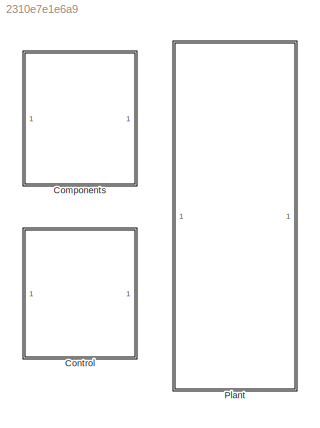
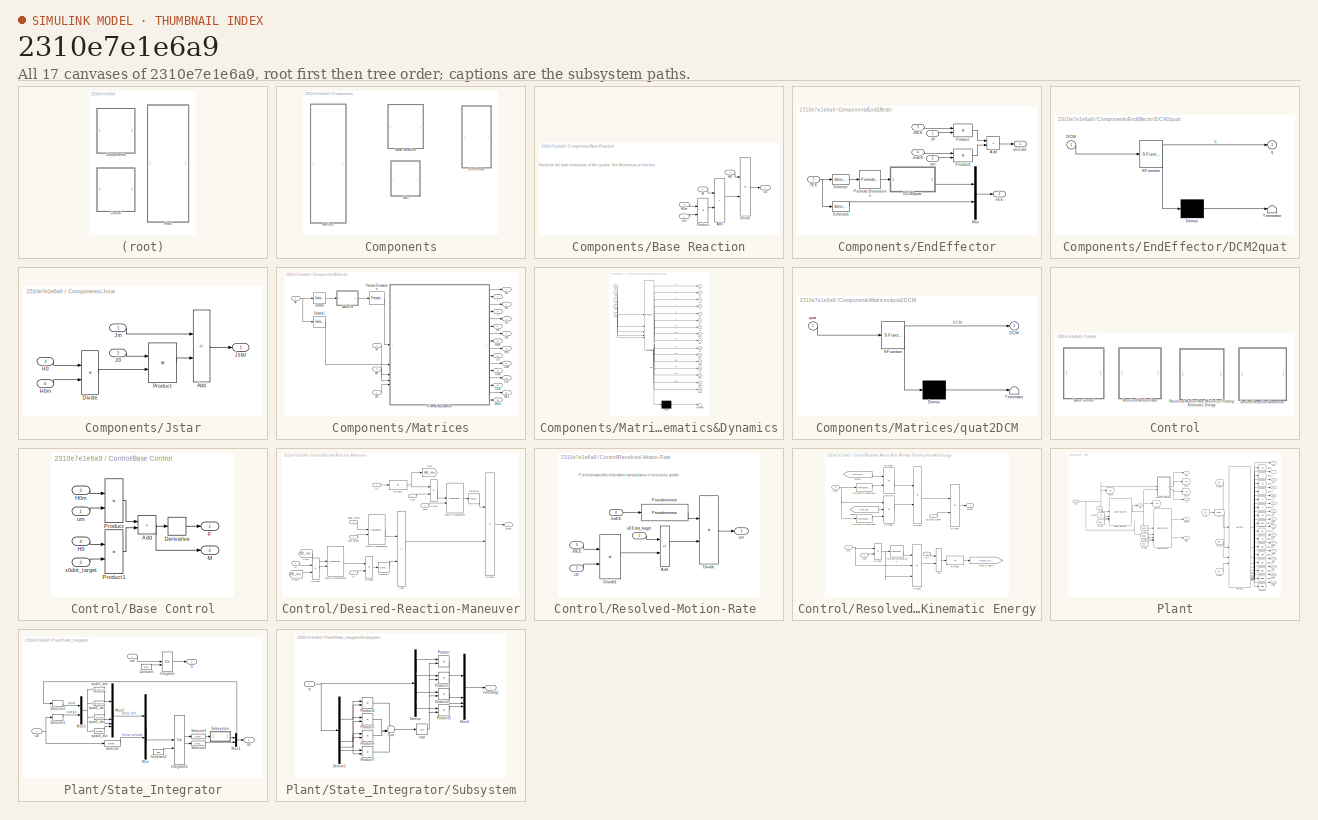
[diagram: thumbnail index - all 17 canvases of the model, root first then tree order]
MODEL slx_2310e7e1e6a9
KIND library
CONFIG AbsTol = auto
CONFIG EnableMultiTasking = on
CONFIG FixedStep = auto
CONFIG MaxStep = auto
CONFIG MinStep = auto
CONFIG RelTol = 1e-3
CONFIG SampleTimeConstraint = Unconstrained
CONFIG SolverName = ode45
CONFIG StartTime = 0.0
CONFIG StopTime = 10.0
BLOCK [SubSystem] Components
BLOCK [SubSystem] Components/Base Reaction
BLOCK [Sum] Components/Base Reaction/Add
  IconShape = rectangular
  Inputs = +-
BLOCK [Product] Components/Base Reaction/Divide
  Inputs = /*
  Multiplication = Matrix(*)
BLOCK [Inport] Components/Base Reaction/H0
  Port = 3
BLOCK [Inport] Components/Base Reaction/H0m
  Port = 4
BLOCK [Inport] Components/Base Reaction/M
  Port = 2
BLOCK [Product] Components/Base Reaction/Product
  Multiplication = Matrix(*)
BLOCK [Outport] Components/Base Reaction/u0
BLOCK [Inport] Components/Base Reaction/um
BLOCK [SubSystem] Components/EndEffector
BLOCK [Sum] Components/EndEffector/Add
  IconShape = rectangular
BLOCK [SubSystem] Components/EndEffector/DCM2quat
  ErrorFcn = Stateflow.Translate.translate
  PermitHierarchicalResolution = ExplicitOnly
  SFBlockType = MATLAB Function
  TreatAsAtomicUnit = on
BLOCK [Demux] Components/EndEffector/DCM2quat/ Demux 
  Outputs = 1
BLOCK [S-Function] Components/EndEffector/DCM2quat/ SFunction 
  EnableBusSupport = off
  FunctionName = sf_sfun
  PortCounts = [1 2]
  SFcnIsStateOwnerBlock = off
  SFunctionDeploymentMode = off
  Tag = Stateflow S-Function 7
BLOCK [Terminator] Components/EndEffector/DCM2quat/ Terminator 
BLOCK [Inport] Components/EndEffector/DCM2quat/DCM
BLOCK [Outport] Components/EndEffector/DCM2quat/q
BLOCK [Inport] Components/EndEffector/J0EE
  Port = 3
BLOCK [Inport] Components/EndEffector/JmEE
  Port = 4
BLOCK [Mux] Components/EndEffector/Mux
  DisplayOption = bar
  Inputs = 2
BLOCK [PermuteDimensions] Components/EndEffector/Permute Dimensions
BLOCK [Product] Components/EndEffector/Product
  Multiplication = Matrix(*)
BLOCK [Product] Components/EndEffector/Product1
  Multiplication = Matrix(*)
BLOCK [Selector] Components/EndEffector/Selector
  IndexOptions = Index vector (dialog),Index vector (dialog)
  Indices = [1:3],[1:3]
  InputPortWidth = 6
  NumberOfDimensions = 2
  OutputSizes = 1,1
BLOCK [Selector] Components/EndEffector/Selector1
  IndexOptions = Index vector (dialog),Index vector (dialog)
  Indices = [1:3],[4]
  InputPortWidth = 6
  NumberOfDimensions = 2
  OutputSizes = 1,1
BLOCK [Inport] Components/EndEffector/TEE
  Port = 5
BLOCK [Inport] Components/EndEffector/u0
BLOCK [Inport] Components/EndEffector/um
  Port = 2
BLOCK [Outport] Components/EndEffector/xEE
  Port = 2
BLOCK [Outport] Components/EndEffector/xEEdot
BLOCK [SubSystem] Components/Jstar
BLOCK [Sum] Components/Jstar/Add
  IconShape = rectangular
  Inputs = +-
BLOCK [Product] Components/Jstar/Divide
  Inputs = /*
  Multiplication = Matrix(*)
BLOCK [Inport] Components/Jstar/H0
  Port = 3
BLOCK [Inport] Components/Jstar/H0m
  Port = 4
BLOCK [Inport] Components/Jstar/J0
  Port = 2
BLOCK [Inport] Components/Jstar/Jm 
BLOCK [Outport] Components/Jstar/Jstar
BLOCK [Product] Components/Jstar/Product
  Multiplication = Matrix(*)
BLOCK [SubSystem] Components/Matrices
BLOCK [Outport] Components/Matrices/C0
  Port = 10
BLOCK [Outport] Components/Matrices/C0m
  Port = 11
BLOCK [Outport] Components/Matrices/Cm
  Port = 13
BLOCK [Outport] Components/Matrices/Cm0
  Port = 12
BLOCK [Outport] Components/Matrices/H0
  Port = 7
BLOCK [Outport] Components/Matrices/H0m
  Port = 8
BLOCK [Outport] Components/Matrices/Hm
  Port = 9
BLOCK [Outport] Components/Matrices/I
  Port = 2
BLOCK [Outport] Components/Matrices/J0EE
  Port = 15
BLOCK [Outport] Components/Matrices/JmEE
  Port = 16
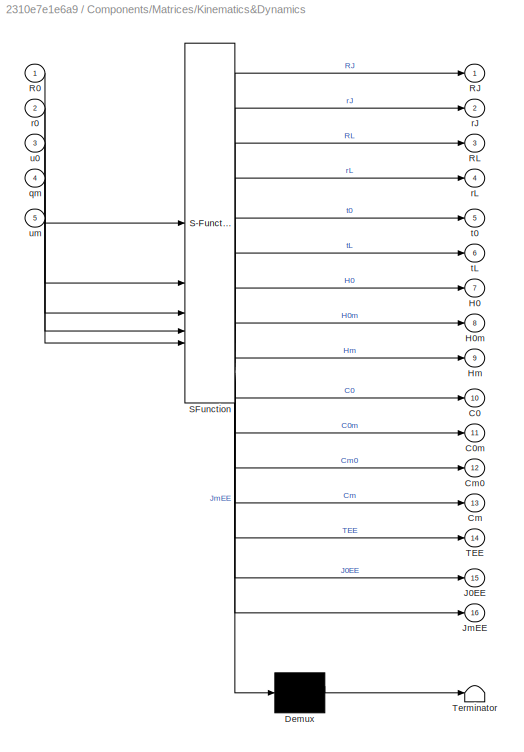
BLOCK [SubSystem] Components/Matrices/Kinematics&Dynamics
  ErrorFcn = Stateflow.Translate.translate
  PermitHierarchicalResolution = ExplicitOnly
  SFBlockType = MATLAB Function
  TreatAsAtomicUnit = on
BLOCK [Demux] Components/Matrices/Kinematics&Dynamics/ Demux 
  Outputs = 1
BLOCK [S-Function] Components/Matrices/Kinematics&Dynamics/ SFunction 
  EnableBusSupport = off
  FunctionName = sf_sfun
  Parameters = T_Ln_EE,robot
  PortCounts = [5 17]
  SFcnIsStateOwnerBlock = off
  SFunctionDeploymentMode = off
  Tag = Stateflow S-Function 3
BLOCK [Terminator] Components/Matrices/Kinematics&Dynamics/ Terminator 
BLOCK [Outport] Components/Matrices/Kinematics&Dynamics/C0
  Port = 10
BLOCK [Outport] Components/Matrices/Kinematics&Dynamics/C0m
  Port = 11
BLOCK [Outport] Components/Matrices/Kinematics&Dynamics/Cm
  Port = 13
BLOCK [Outport] Components/Matrices/Kinematics&Dynamics/Cm0
  Port = 12
BLOCK [Outport] Components/Matrices/Kinematics&Dynamics/H0
  Port = 7
BLOCK [Outport] Components/Matrices/Kinematics&Dynamics/H0m
  Port = 8
BLOCK [Outport] Components/Matrices/Kinematics&Dynamics/Hm
  Port = 9
BLOCK [Outport] Components/Matrices/Kinematics&Dynamics/J0EE
  Port = 15
BLOCK [Outport] Components/Matrices/Kinematics&Dynamics/JmEE
  Port = 16
BLOCK [Inport] Components/Matrices/Kinematics&Dynamics/R0
BLOCK [Outport] Components/Matrices/Kinematics&Dynamics/RJ
BLOCK [Outport] Components/Matrices/Kinematics&Dynamics/RL
  Port = 3
BLOCK [Outport] Components/Matrices/Kinematics&Dynamics/TEE
  Port = 14
BLOCK [Inport] Components/Matrices/Kinematics&Dynamics/qm
  Port = 4
BLOCK [Inport] Components/Matrices/Kinematics&Dynamics/r0
  Port = 2
BLOCK [Outport] Components/Matrices/Kinematics&Dynamics/rJ
  Port = 2
BLOCK [Outport] Components/Matrices/Kinematics&Dynamics/rL
  Port = 4
BLOCK [Outport] Components/Matrices/Kinematics&Dynamics/t0
  Port = 5
BLOCK [Outport] Components/Matrices/Kinematics&Dynamics/tL
  Port = 6
BLOCK [Inport] Components/Matrices/Kinematics&Dynamics/u0
  Port = 3
BLOCK [Inport] Components/Matrices/Kinematics&Dynamics/um
  Port = 5
BLOCK [PermuteDimensions] Components/Matrices/Permute Dimensions
BLOCK [Outport] Components/Matrices/RJ
BLOCK [Outport] Components/Matrices/RL
  Port = 3
BLOCK [Selector] Components/Matrices/Selector
  IndexOptions = Index vector (dialog)
  Indices = [1:4]
  InputPortWidth = 7
  OutputSizes = 1
BLOCK [Selector] Components/Matrices/Selector1
  IndexOptions = Index vector (dialog)
  Indices = [5:7]
  InputPortWidth = 7
  OutputSizes = 1
BLOCK [Outport] Components/Matrices/TEE
  Port = 14
BLOCK [Inport] Components/Matrices/q0
BLOCK [Inport] Components/Matrices/qm
  Port = 3
BLOCK [SubSystem] Components/Matrices/quat2DCM
  ErrorFcn = Stateflow.Translate.translate
  PermitHierarchicalResolution = ExplicitOnly
  SFBlockType = MATLAB Function
  TreatAsAtomicUnit = on
BLOCK [Demux] Components/Matrices/quat2DCM/ Demux 
  Outputs = 1
BLOCK [S-Function] Components/Matrices/quat2DCM/ SFunction 
  EnableBusSupport = off
  FunctionName = sf_sfun
  PortCounts = [1 2]
  SFcnIsStateOwnerBlock = off
  SFunctionDeploymentMode = off
  Tag = Stateflow S-Function 5
BLOCK [Terminator] Components/Matrices/quat2DCM/ Terminator 
BLOCK [Outport] Components/Matrices/quat2DCM/DCM
BLOCK [Inport] Components/Matrices/quat2DCM/quat
BLOCK [Outport] Components/Matrices/r
  Port = 4
BLOCK [Outport] Components/Matrices/t0
  Port = 5
BLOCK [Outport] Components/Matrices/tm
  Port = 6
BLOCK [Inport] Components/Matrices/u0
  Port = 2
BLOCK [Inport] Components/Matrices/um
  Port = 4
BLOCK [SubSystem] Control
BLOCK [SubSystem] Control/Base Control
BLOCK [Sum] Control/Base Control/Add
  IconShape = rectangular
BLOCK [Derivative] Control/Base Control/Derivative
BLOCK [Outport] Control/Base Control/F
BLOCK [Inport] Control/Base Control/H0
  Port = 4
BLOCK [Inport] Control/Base Control/H0m
  Port = 2
BLOCK [Outport] Control/Base Control/M
  Port = 2
BLOCK [Product] Control/Base Control/Product
  Multiplication = Matrix(*)
BLOCK [Product] Control/Base Control/Product1
  Multiplication = Matrix(*)
BLOCK [Inport] Control/Base Control/um
BLOCK [Inport] Control/Base Control/x0dot_target
  Port = 3
BLOCK [SubSystem] Control/Desired-Reaction-Maneuver
  MinAlgLoopOccurrences = on
BLOCK [Sum] Control/Desired-Reaction-Maneuver/Add1
  IconShape = rectangular
  Inputs = +-
BLOCK [Product] Control/Desired-Reaction-Maneuver/Divide1
  Inputs = **
  Multiplication = Matrix(*)
BLOCK [Product] Control/Desired-Reaction-Maneuver/Divide11
  Inputs = /
  Multiplication = Matrix(*)
BLOCK [Product] Control/Desired-Reaction-Maneuver/Divide2
  Inputs = **
  Multiplication = Matrix(*)
BLOCK [Product] Control/Desired-Reaction-Maneuver/Divide3
  Inputs = /*
  Multiplication = Matrix(*)
BLOCK [Product] Control/Desired-Reaction-Maneuver/Divide4
  Inputs = **
  Multiplication = Matrix(*)
BLOCK [From] Control/Desired-Reaction-Maneuver/From
  GotoTag = H0_inv
BLOCK [From] Control/Desired-Reaction-Maneuver/From1
  GotoTag = H0_inv
BLOCK [Goto] Control/Desired-Reaction-Maneuver/Goto
  GotoTag = H0_inv
BLOCK [Inport] Control/Desired-Reaction-Maneuver/H0
  Port = 3
BLOCK [Inport] Control/Desired-Reaction-Maneuver/H0m
  Port = 4
BLOCK [Inport] Control/Desired-Reaction-Maneuver/J0
  Port = 5
BLOCK [Inport] Control/Desired-Reaction-Maneuver/Jstar
  Port = 6
BLOCK [Inport] Control/Desired-Reaction-Maneuver/M
  Port = 7
BLOCK [Concatenate] Control/Desired-Reaction-Maneuver/Matrix Concatenate
  Mode = Multidimensional array
BLOCK [Concatenate] Control/Desired-Reaction-Maneuver/Matrix Concatenate1
  Mode = Multidimensional array
BLOCK [Concatenate] Control/Desired-Reaction-Maneuver/Matrix Concatenate2
  Mode = Multidimensional array
BLOCK [Selector] Control/Desired-Reaction-Maneuver/Selector1
  IndexOptions = Index vector (dialog),Select all
  Indices = [q0dot_I,5+xdot_I],[1:n]
  InputPortWidth = 3
  NumberOfDimensions = 2
  OutputSizes = 1,1
BLOCK [Selector] Control/Desired-Reaction-Maneuver/Selector2
  IndexOptions = Index vector (dialog),Index vector (dialog)
  Indices = [q0dot_I,5+xdot_I],[1]
  InputPortWidth = 3
  NumberOfDimensions = 2
  OutputSizes = 1,1
BLOCK [Inport] Control/Desired-Reaction-Maneuver/q0dot_target
  Port = 2
BLOCK [Outport] Control/Desired-Reaction-Maneuver/qmdot
BLOCK [Inport] Control/Desired-Reaction-Maneuver/xdot_target
BLOCK [SubSystem] Control/Resolved-Motion-Rate 
  MinAlgLoopOccurrences = on
BLOCK [Sum] Control/Resolved-Motion-Rate /Add
  IconShape = rectangular
  Inputs = +-
BLOCK [Product] Control/Resolved-Motion-Rate /Divide
  Inputs = **
  Multiplication = Matrix(*)
BLOCK [Product] Control/Resolved-Motion-Rate /Divide1
  Inputs = **
  Multiplication = Matrix(*)
BLOCK [Inport] Control/Resolved-Motion-Rate /J0EE
  Port = 3
BLOCK [Inport] Control/Resolved-Motion-Rate /JmEE
  Port = 4
BLOCK [Reference] Control/Resolved-Motion-Rate /Pseudoinverse  REF=dspinverses/Pseudoinverse
  SourceBlock = dspinverses/Pseudoinverse
  SourceType = Pseudoinverse
BLOCK [Inport] Control/Resolved-Motion-Rate /u0
  Port = 2
BLOCK [Outport] Control/Resolved-Motion-Rate /um
BLOCK [Inport] Control/Resolved-Motion-Rate /xEEdot_target
BLOCK [SubSystem] Control/Resolved-Motion-Rate Minimize Floating Kinematic Energy
  MinAlgLoopOccurrences = on
BLOCK [Sum] Control/Resolved-Motion-Rate Minimize Floating Kinematic Energy/Add
  IconShape = rectangular
BLOCK [Product] Control/Resolved-Motion-Rate Minimize Floating Kinematic Energy/Divide1
  Inputs = /*
  Multiplication = Matrix(*)
BLOCK [Product] Control/Resolved-Motion-Rate Minimize Floating Kinematic Energy/Divide2
  Inputs = ***
  Multiplication = Matrix(*)
BLOCK [Product] Control/Resolved-Motion-Rate Minimize Floating Kinematic Energy/Divide5
  Inputs = ***
  Multiplication = Matrix(*)
BLOCK [Product] Control/Resolved-Motion-Rate Minimize Floating Kinematic Energy/Divide6
  Inputs = /
  Multiplication = Matrix(*)
BLOCK [Product] Control/Resolved-Motion-Rate Minimize Floating Kinematic Energy/Divide7
  Inputs = **
  Multiplication = Matrix(*)
BLOCK [Product] Control/Resolved-Motion-Rate Minimize Floating Kinematic Energy/Divide8
  Inputs = */
  Multiplication = Matrix(*)
BLOCK [Product] Control/Resolved-Motion-Rate Minimize Floating Kinematic Energy/Divide9
  Inputs = **
  Multiplication = Matrix(*)
BLOCK [From] Control/Resolved-Motion-Rate Minimize Floating Kinematic Energy/From1
  GotoTag = Hstar_Kinetic_Inv
BLOCK [From] Control/Resolved-Motion-Rate Minimize Floating Kinematic Energy/From2
  GotoTag = Hstar_Kinetic_Inv
BLOCK [Inport] Control/Resolved-Motion-Rate Minimize Floating Kinematic Energy/H0
  Port = 3
BLOCK [Inport] Control/Resolved-Motion-Rate Minimize Floating Kinematic Energy/H0m
  Port = 4
BLOCK [Inport] Control/Resolved-Motion-Rate Minimize Floating Kinematic Energy/Hm
  Port = 5
BLOCK [Goto] Control/Resolved-Motion-Rate Minimize Floating Kinematic Energy/Hstar_Kinetic
  GotoTag = Hstar_Kinetic_Inv
BLOCK [Inport] Control/Resolved-Motion-Rate Minimize Floating Kinematic Energy/Jstar
  Port = 2
BLOCK [PermuteDimensions] Control/Resolved-Motion-Rate Minimize Floating Kinematic Energy/Permute Dimensions
BLOCK [PermuteDimensions] Control/Resolved-Motion-Rate Minimize Floating Kinematic Energy/Permute Dimensions1
BLOCK [PermuteDimensions] Control/Resolved-Motion-Rate Minimize Floating Kinematic Energy/Permute Dimensions2
BLOCK [Outport] Control/Resolved-Motion-Rate Minimize Floating Kinematic Energy/qmdot
BLOCK [Inport] Control/Resolved-Motion-Rate Minimize Floating Kinematic Energy/xEEdot_target
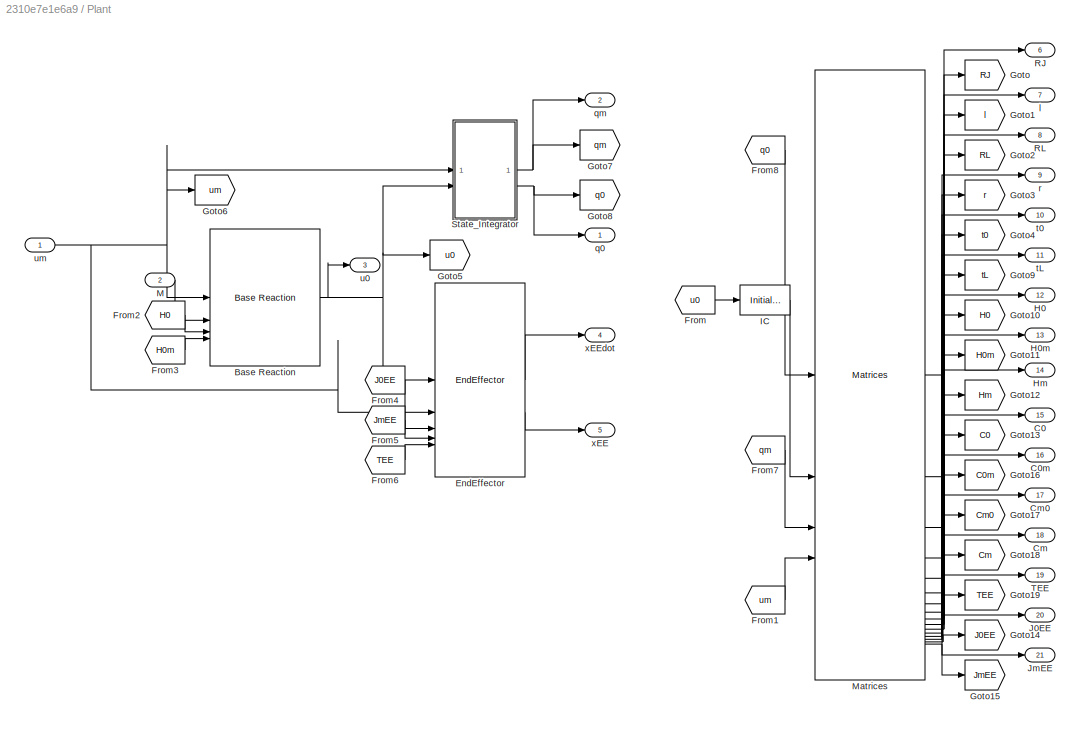
BLOCK [SubSystem] Plant
  MinAlgLoopOccurrences = on
  TreatAsAtomicUnit = on
BLOCK [Reference] Plant/Base Reaction  REF=$bdroot/Components/Base Reaction
  SourceBlock = $bdroot/Components/Base Reaction
  SourceType = SubSystem
BLOCK [Outport] Plant/C0 
  Port = 15
BLOCK [Outport] Plant/C0m 
  Port = 16
BLOCK [Outport] Plant/Cm 
  Port = 18
BLOCK [Outport] Plant/Cm0 
  Port = 17
BLOCK [Reference] Plant/EndEffector  REF=$bdroot/Components/EndEffector
  SourceBlock = $bdroot/Components/EndEffector
  SourceType = SubSystem
BLOCK [From] Plant/From
  GotoTag = u0
BLOCK [From] Plant/From1
  GotoTag = um
BLOCK [From] Plant/From2
  GotoTag = H0
BLOCK [From] Plant/From3
  GotoTag = H0m
BLOCK [From] Plant/From4
  GotoTag = J0EE
BLOCK [From] Plant/From5
  GotoTag = JmEE
BLOCK [From] Plant/From6
  GotoTag = TEE
BLOCK [From] Plant/From7
  GotoTag = qm
BLOCK [From] Plant/From8
  GotoTag = q0
BLOCK [Goto] Plant/Goto
  GotoTag = RJ
BLOCK [Goto] Plant/Goto1
  GotoTag = l
BLOCK [Goto] Plant/Goto10
  GotoTag = H0
BLOCK [Goto] Plant/Goto11
  GotoTag = H0m
BLOCK [Goto] Plant/Goto12
  GotoTag = Hm
BLOCK [Goto] Plant/Goto13
  GotoTag = C0
BLOCK [Goto] Plant/Goto14
  GotoTag = J0EE
BLOCK [Goto] Plant/Goto15
  GotoTag = JmEE
BLOCK [Goto] Plant/Goto16
  GotoTag = C0m
BLOCK [Goto] Plant/Goto17
  GotoTag = Cm0
BLOCK [Goto] Plant/Goto18
  GotoTag = Cm
BLOCK [Goto] Plant/Goto19
  GotoTag = TEE
BLOCK [Goto] Plant/Goto2
  GotoTag = RL
BLOCK [Goto] Plant/Goto3
  GotoTag = r
BLOCK [Goto] Plant/Goto4
  GotoTag = t0
BLOCK [Goto] Plant/Goto5
  GotoTag = u0
BLOCK [Goto] Plant/Goto6
  GotoTag = um
BLOCK [Goto] Plant/Goto7
  GotoTag = qm
BLOCK [Goto] Plant/Goto8
  GotoTag = q0
BLOCK [Goto] Plant/Goto9
  GotoTag = tL
BLOCK [Outport] Plant/H0 
  Port = 12
BLOCK [Outport] Plant/H0m 
  Port = 13
BLOCK [Outport] Plant/Hm 
  Port = 14
BLOCK [InitialCondition] Plant/IC
  Value = u00
BLOCK [Outport] Plant/J0EE 
  Port = 20
BLOCK [Outport] Plant/JmEE
  Port = 21
BLOCK [Inport] Plant/M
  Port = 2
BLOCK [Reference] Plant/Matrices  REF=$bdroot/Components/Matrices
  SourceBlock = $bdroot/Components/Matrices
  SourceType = SubSystem
BLOCK [Outport] Plant/RJ
  Port = 6
BLOCK [Outport] Plant/RL
  Port = 8
BLOCK [SubSystem] Plant/State_Integrator
BLOCK [Constant] Plant/State_Integrator/Constant
  Value = qm0
BLOCK [Constant] Plant/State_Integrator/Constant1
  Value = q00
BLOCK [Integrator] Plant/State_Integrator/Integrator
  InitialConditionSource = external
BLOCK [Integrator] Plant/State_Integrator/Integrator1
  InitialConditionSource = external
BLOCK [Mux] Plant/State_Integrator/Mux
  DisplayOption = bar
  Inputs = 2
BLOCK [Mux] Plant/State_Integrator/Mux1
  DisplayOption = bar
  Inputs = 2
BLOCK [Mux] Plant/State_Integrator/Mux2
  DisplayOption = bar
BLOCK [Mux] Plant/State_Integrator/Mux3
  DisplayOption = bar
  Inputs = 2
BLOCK [Selector] Plant/State_Integrator/Selector
  IndexOptions = Index vector (dialog)
  Indices = [4:6]
  InputPortWidth = 6
  OutputSizes = 1
BLOCK [Selector] Plant/State_Integrator/Selector1
  IndexOptions = Index vector (dialog)
  Indices = [1:3]
  InputPortWidth = 6
  OutputSizes = 1
BLOCK [Selector] Plant/State_Integrator/Selector2
  IndexOptions = Index vector (dialog)
  Indices = [1:4]
  InputPortWidth = 7
  OutputSizes = 1
BLOCK [Selector] Plant/State_Integrator/Selector3
  IndexOptions = Index vector (dialog)
  Indices = [1:4]
  InputPortWidth = 7
  OutputSizes = 1
BLOCK [Selector] Plant/State_Integrator/Selector4
  IndexOptions = Index vector (dialog)
  Indices = [5:7]
  InputPortWidth = 7
  OutputSizes = 1
BLOCK [SubSystem] Plant/State_Integrator/Subsystem
BLOCK [Demux] Plant/State_Integrator/Subsystem/Demux
BLOCK [Demux] Plant/State_Integrator/Subsystem/Demux1
BLOCK [Mux] Plant/State_Integrator/Subsystem/Mux4
  DisplayOption = bar
BLOCK [Product] Plant/State_Integrator/Subsystem/Product
  Inputs = */
BLOCK [Product] Plant/State_Integrator/Subsystem/Product1
  Inputs = */
BLOCK [Product] Plant/State_Integrator/Subsystem/Product2
  Inputs = */
BLOCK [Product] Plant/State_Integrator/Subsystem/Product3
  Inputs = */
BLOCK [Product] Plant/State_Integrator/Subsystem/Product4
BLOCK [Product] Plant/State_Integrator/Subsystem/Product5
BLOCK [Product] Plant/State_Integrator/Subsystem/Product6
BLOCK [Product] Plant/State_Integrator/Subsystem/Product7
BLOCK [Sum] Plant/State_Integrator/Subsystem/Sum
  Inputs = 4
BLOCK [Outport] Plant/State_Integrator/Subsystem/normal(q)
BLOCK [Inport] Plant/State_Integrator/Subsystem/q
BLOCK [Sqrt] Plant/State_Integrator/Subsystem/sqrt
  AlgorithmType = Newton-Raphson
BLOCK [Outport] Plant/State_Integrator/q
BLOCK [Outport] Plant/State_Integrator/q0
  Port = 2
BLOCK [Fcn] Plant/State_Integrator/quat1_dot
  Expr = (u[4]*u[5]-u[3]*u[6]+u[2]*u[7])/2
BLOCK [Fcn] Plant/State_Integrator/quat2_dot
  Expr = (u[3]*u[5]+u[4]*u[6]-u[1]*u[7])/2
BLOCK [Fcn] Plant/State_Integrator/quat3_dot
  Expr = (-u[2]*u[5]+u[1]*u[6]+u[4]*u[7])/2
BLOCK [Fcn] Plant/State_Integrator/quat4_dot
  Expr = (-u[1]*u[5]-u[2]*u[6]-u[3]*u[7])/2
BLOCK [Inport] Plant/State_Integrator/u0
  Port = 2
BLOCK [Inport] Plant/State_Integrator/um
BLOCK [Outport] Plant/TEE
  Port = 19
BLOCK [Outport] Plant/l
  Port = 7
BLOCK [Outport] Plant/q0 
BLOCK [Outport] Plant/qm
  Port = 2
BLOCK [Outport] Plant/r
  Port = 9
BLOCK [Outport] Plant/t0
  Port = 10
BLOCK [Outport] Plant/tL 
  Port = 11
BLOCK [Outport] Plant/u0 
  Port = 3
BLOCK [Inport] Plant/um
BLOCK [Outport] Plant/xEE
  Port = 5
BLOCK [Outport] Plant/xEEdot
  Port = 4
ANNOTATION Components/Base Reaction: Should be the total momentum of the system. See Momentum.m function.
ANNOTATION Control/Resolved-Motion-Rate : For kinematically redundant manipulators it minimizes qmdot
LINE Components/Base Reaction/Add:1 -> Components/Base Reaction/Divide:2
LINE Components/Base Reaction/Divide:1 -> Components/Base Reaction/u0:1
LINE Components/Base Reaction/H0:1 -> Components/Base Reaction/Divide:1
LINE Components/Base Reaction/H0m:1 -> Components/Base Reaction/Product:1
LINE Components/Base Reaction/M:1 -> Components/Base Reaction/Add:1
LINE Components/Base Reaction/Product:1 -> Components/Base Reaction/Add:2
LINE Components/Base Reaction/um:1 -> Components/Base Reaction/Product:2
LINE Components/EndEffector/Add:1 -> Components/EndEffector/xEEdot:1
LINE Components/EndEffector/DCM2quat:1 -> Components/EndEffector/Mux:1
LINE Components/EndEffector/J0EE:1 -> Components/EndEffector/Product:1
LINE Components/EndEffector/JmEE:1 -> Components/EndEffector/Product1:1
LINE Components/EndEffector/Mux:1 -> Components/EndEffector/xEE:1
LINE Components/EndEffector/Permute Dimensions:1 -> Components/EndEffector/DCM2quat:1
LINE Components/EndEffector/Product1:1 -> Components/EndEffector/Add:2
LINE Components/EndEffector/Product:1 -> Components/EndEffector/Add:1
LINE Components/EndEffector/Selector1:1 -> Components/EndEffector/Mux:2
LINE Components/EndEffector/Selector:1 -> Components/EndEffector/Permute Dimensions:1
NET Components/EndEffector/TEE:1 -> Components/EndEffector/Selector1:1, Components/EndEffector/Selector:1
LINE Components/EndEffector/u0:1 -> Components/EndEffector/Product:2
LINE Components/EndEffector/um:1 -> Components/EndEffector/Product1:2
LINE Components/Jstar/Add:1 -> Components/Jstar/Jstar:1
LINE Components/Jstar/Divide:1 -> Components/Jstar/Product:2
LINE Components/Jstar/H0:1 -> Components/Jstar/Divide:1
LINE Components/Jstar/H0m:1 -> Components/Jstar/Divide:2
LINE Components/Jstar/J0:1 -> Components/Jstar/Product:1
LINE Components/Jstar/Jm :1 -> Components/Jstar/Add:1
LINE Components/Jstar/Product:1 -> Components/Jstar/Add:2
LINE Components/Matrices/Kinematics&Dynamics:1 -> Components/Matrices/RJ:1
LINE Components/Matrices/Kinematics&Dynamics:10 -> Components/Matrices/C0:1
LINE Components/Matrices/Kinematics&Dynamics:11 -> Components/Matrices/C0m:1
LINE Components/Matrices/Kinematics&Dynamics:12 -> Components/Matrices/Cm0:1
LINE Components/Matrices/Kinematics&Dynamics:13 -> Components/Matrices/Cm:1
LINE Components/Matrices/Kinematics&Dynamics:14 -> Components/Matrices/TEE:1
LINE Components/Matrices/Kinematics&Dynamics:15 -> Components/Matrices/J0EE:1
LINE Components/Matrices/Kinematics&Dynamics:16 -> Components/Matrices/JmEE:1
LINE Components/Matrices/Kinematics&Dynamics:2 -> Components/Matrices/I:1
LINE Components/Matrices/Kinematics&Dynamics:3 -> Components/Matrices/RL:1
LINE Components/Matrices/Kinematics&Dynamics:4 -> Components/Matrices/r:1
LINE Components/Matrices/Kinematics&Dynamics:5 -> Components/Matrices/t0:1
LINE Components/Matrices/Kinematics&Dynamics:6 -> Components/Matrices/tm:1
LINE Components/Matrices/Kinematics&Dynamics:7 -> Components/Matrices/H0:1
LINE Components/Matrices/Kinematics&Dynamics:8 -> Components/Matrices/H0m:1
LINE Components/Matrices/Kinematics&Dynamics:9 -> Components/Matrices/Hm:1
LINE Components/Matrices/Permute Dimensions:1 -> Components/Matrices/Kinematics&Dynamics:1
LINE Components/Matrices/Selector1:1 -> Components/Matrices/Kinematics&Dynamics:2
LINE Components/Matrices/Selector:1 -> Components/Matrices/quat2DCM:1
NET Components/Matrices/q0:1 -> Components/Matrices/Selector1:1, Components/Matrices/Selector:1
LINE Components/Matrices/qm:1 -> Components/Matrices/Kinematics&Dynamics:4
LINE Components/Matrices/quat2DCM:1 -> Components/Matrices/Permute Dimensions:1
LINE Components/Matrices/u0:1 -> Components/Matrices/Kinematics&Dynamics:3
LINE Components/Matrices/um:1 -> Components/Matrices/Kinematics&Dynamics:5
NET Control/Base Control/Add:1 -> Control/Base Control/Derivative:1, Control/Base Control/M:1
LINE Control/Base Control/Derivative:1 -> Control/Base Control/F:1
LINE Control/Base Control/H0:1 -> Control/Base Control/Product1:1
LINE Control/Base Control/H0m:1 -> Control/Base Control/Product:1
LINE Control/Base Control/Product1:1 -> Control/Base Control/Add:2
LINE Control/Base Control/Product:1 -> Control/Base Control/Add:1
LINE Control/Base Control/um:1 -> Control/Base Control/Product:2
LINE Control/Base Control/x0dot_target:1 -> Control/Base Control/Product1:2
LINE Control/Desired-Reaction-Maneuver/Add1:1 -> Control/Desired-Reaction-Maneuver/Divide3:2
NET Control/Desired-Reaction-Maneuver/Divide11:1 -> Control/Desired-Reaction-Maneuver/Divide4:1, Control/Desired-Reaction-Maneuver/Goto:1
LINE Control/Desired-Reaction-Maneuver/Divide1:1 -> Control/Desired-Reaction-Maneuver/Selector2:1
LINE Control/Desired-Reaction-Maneuver/Divide2:1 -> Control/Desired-Reaction-Maneuver/Matrix Concatenate2:2
LINE Control/Desired-Reaction-Maneuver/Divide3:1 -> Control/Desired-Reaction-Maneuver/qmdot:1
LINE Control/Desired-Reaction-Maneuver/Divide4:1 -> Control/Desired-Reaction-Maneuver/Matrix Concatenate:1
LINE Control/Desired-Reaction-Maneuver/From1:1 -> Control/Desired-Reaction-Maneuver/Divide2:2
LINE Control/Desired-Reaction-Maneuver/From:1 -> Control/Desired-Reaction-Maneuver/Matrix Concatenate2:1
LINE Control/Desired-Reaction-Maneuver/H0:1 -> Control/Desired-Reaction-Maneuver/Divide11:1
LINE Control/Desired-Reaction-Maneuver/H0m:1 -> Control/Desired-Reaction-Maneuver/Divide4:2
LINE Control/Desired-Reaction-Maneuver/J0:1 -> Control/Desired-Reaction-Maneuver/Divide2:1
LINE Control/Desired-Reaction-Maneuver/Jstar:1 -> Control/Desired-Reaction-Maneuver/Matrix Concatenate:2
LINE Control/Desired-Reaction-Maneuver/M:1 -> Control/Desired-Reaction-Maneuver/Divide1:2
LINE Control/Desired-Reaction-Maneuver/Matrix Concatenate1:1 -> Control/Desired-Reaction-Maneuver/Add1:1
LINE Control/Desired-Reaction-Maneuver/Matrix Concatenate2:1 -> Control/Desired-Reaction-Maneuver/Divide1:1
LINE Control/Desired-Reaction-Maneuver/Matrix Concatenate:1 -> Control/Desired-Reaction-Maneuver/Selector1:1
LINE Control/Desired-Reaction-Maneuver/Selector1:1 -> Control/Desired-Reaction-Maneuver/Divide3:1
LINE Control/Desired-Reaction-Maneuver/Selector2:1 -> Control/Desired-Reaction-Maneuver/Add1:2
LINE Control/Desired-Reaction-Maneuver/q0dot_target:1 -> Control/Desired-Reaction-Maneuver/Matrix Concatenate1:1
LINE Control/Desired-Reaction-Maneuver/xdot_target:1 -> Control/Desired-Reaction-Maneuver/Matrix Concatenate1:2
LINE Control/Resolved-Motion-Rate /Add:1 -> Control/Resolved-Motion-Rate /Divide:2
LINE Control/Resolved-Motion-Rate /Divide1:1 -> Control/Resolved-Motion-Rate /Add:2
LINE Control/Resolved-Motion-Rate /Divide:1 -> Control/Resolved-Motion-Rate /um:1
LINE Control/Resolved-Motion-Rate /J0EE:1 -> Control/Resolved-Motion-Rate /Divide1:1
LINE Control/Resolved-Motion-Rate /JmEE:1 -> Control/Resolved-Motion-Rate /Pseudoinverse:1
LINE Control/Resolved-Motion-Rate /Pseudoinverse:1 -> Control/Resolved-Motion-Rate /Divide:1
LINE Control/Resolved-Motion-Rate /u0:1 -> Control/Resolved-Motion-Rate /Divide1:2
LINE Control/Resolved-Motion-Rate /xEEdot_target:1 -> Control/Resolved-Motion-Rate /Add:1
LINE Control/Resolved-Motion-Rate Minimize Floating Kinematic Energy/Add:1 -> Control/Resolved-Motion-Rate Minimize Floating Kinematic Energy/Divide6:1
NET Control/Resolved-Motion-Rate Minimize Floating Kinematic Energy/Divide1:1 -> Control/Resolved-Motion-Rate Minimize Floating Kinematic Energy/Divide2:3, Control/Resolved-Motion-Rate Minimize Floating Kinematic Energy/Permute Dimensions:1
LINE Control/Resolved-Motion-Rate Minimize Floating Kinematic Energy/Divide2:1 -> Control/Resolved-Motion-Rate Minimize Floating Kinematic Energy/Add:2
LINE Control/Resolved-Motion-Rate Minimize Floating Kinematic Energy/Divide5:1 -> Control/Resolved-Motion-Rate Minimize Floating Kinematic Energy/Divide8:2
LINE Control/Resolved-Motion-Rate Minimize Floating Kinematic Energy/Divide6:1 -> Control/Resolved-Motion-Rate Minimize Floating Kinematic Energy/Hstar_Kinetic:1
LINE Control/Resolved-Motion-Rate Minimize Floating Kinematic Energy/Divide7:1 -> Control/Resolved-Motion-Rate Minimize Floating Kinematic Energy/Divide8:1
LINE Control/Resolved-Motion-Rate Minimize Floating Kinematic Energy/Divide8:1 -> Control/Resolved-Motion-Rate Minimize Floating Kinematic Energy/Divide9:1
LINE Control/Resolved-Motion-Rate Minimize Floating Kinematic Energy/Divide9:1 -> Control/Resolved-Motion-Rate Minimize Floating Kinematic Energy/qmdot:1
LINE Control/Resolved-Motion-Rate Minimize Floating Kinematic Energy/From1:1 -> Control/Resolved-Motion-Rate Minimize Floating Kinematic Energy/Divide5:2
LINE Control/Resolved-Motion-Rate Minimize Floating Kinematic Energy/From2:1 -> Control/Resolved-Motion-Rate Minimize Floating Kinematic Energy/Divide7:1
NET Control/Resolved-Motion-Rate Minimize Floating Kinematic Energy/H0:1 -> Control/Resolved-Motion-Rate Minimize Floating Kinematic Energy/Divide1:1, Control/Resolved-Motion-Rate Minimize Floating Kinematic Energy/Divide2:2
LINE Control/Resolved-Motion-Rate Minimize Floating Kinematic Energy/H0m:1 -> Control/Resolved-Motion-Rate Minimize Floating Kinematic Energy/Divide1:2
LINE Control/Resolved-Motion-Rate Minimize Floating Kinematic Energy/Hm:1 -> Control/Resolved-Motion-Rate Minimize Floating Kinematic Energy/Add:1
NET Control/Resolved-Motion-Rate Minimize Floating Kinematic Energy/Jstar:1 -> Control/Resolved-Motion-Rate Minimize Floating Kinematic Energy/Divide5:1, Control/Resolved-Motion-Rate Minimize Floating Kinematic Energy/Permute Dimensions1:1, Control/Resolved-Motion-Rate Minimize Floating Kinematic Energy/Permute Dimensions2:1
LINE Control/Resolved-Motion-Rate Minimize Floating Kinematic Energy/Permute Dimensions1:1 -> Control/Resolved-Motion-Rate Minimize Floating Kinematic Energy/Divide7:2
LINE Control/Resolved-Motion-Rate Minimize Floating Kinematic Energy/Permute Dimensions2:1 -> Control/Resolved-Motion-Rate Minimize Floating Kinematic Energy/Divide5:3
LINE Control/Resolved-Motion-Rate Minimize Floating Kinematic Energy/Permute Dimensions:1 -> Control/Resolved-Motion-Rate Minimize Floating Kinematic Energy/Divide2:1
LINE Control/Resolved-Motion-Rate Minimize Floating Kinematic Energy/xEEdot_target:1 -> Control/Resolved-Motion-Rate Minimize Floating Kinematic Energy/Divide9:2
NET Plant/Base Reaction:1 -> Plant/EndEffector:1, Plant/Goto5:1, Plant/State_Integrator:2, Plant/u0 :1
LINE Plant/EndEffector:1 -> Plant/xEEdot:1
LINE Plant/EndEffector:2 -> Plant/xEE:1
LINE Plant/From1:1 -> Plant/Matrices:4
LINE Plant/From2:1 -> Plant/Base Reaction:3
LINE Plant/From3:1 -> Plant/Base Reaction:4
LINE Plant/From4:1 -> Plant/EndEffector:3
LINE Plant/From5:1 -> Plant/EndEffector:4
LINE Plant/From6:1 -> Plant/EndEffector:5
LINE Plant/From7:1 -> Plant/Matrices:3
LINE Plant/From8:1 -> Plant/Matrices:1
LINE Plant/From:1 -> Plant/IC:1
LINE Plant/IC:1 -> Plant/Matrices:2
LINE Plant/M:1 -> Plant/Base Reaction:2
NET Plant/Matrices:1 -> Plant/Goto:1, Plant/RJ:1
NET Plant/Matrices:10 -> Plant/C0 :1, Plant/Goto13:1
NET Plant/Matrices:11 -> Plant/C0m :1, Plant/Goto16:1
NET Plant/Matrices:12 -> Plant/Cm0 :1, Plant/Goto17:1
NET Plant/Matrices:13 -> Plant/Cm :1, Plant/Goto18:1
NET Plant/Matrices:14 -> Plant/Goto19:1, Plant/TEE:1
NET Plant/Matrices:15 -> Plant/Goto14:1, Plant/J0EE :1
NET Plant/Matrices:16 -> Plant/Goto15:1, Plant/JmEE:1
NET Plant/Matrices:2 -> Plant/Goto1:1, Plant/l:1
NET Plant/Matrices:3 -> Plant/Goto2:1, Plant/RL:1
NET Plant/Matrices:4 -> Plant/Goto3:1, Plant/r:1
NET Plant/Matrices:5 -> Plant/Goto4:1, Plant/t0:1
NET Plant/Matrices:6 -> Plant/Goto9:1, Plant/tL :1
NET Plant/Matrices:7 -> Plant/Goto10:1, Plant/H0 :1
NET Plant/Matrices:8 -> Plant/Goto11:1, Plant/H0m :1
NET Plant/Matrices:9 -> Plant/Goto12:1, Plant/Hm :1
LINE Plant/State_Integrator/Constant1:1 -> Plant/State_Integrator/Integrator1:2
LINE Plant/State_Integrator/Constant:1 -> Plant/State_Integrator/Integrator:2
NET Plant/State_Integrator/Integrator1:1 -> Plant/State_Integrator/Selector3:1, Plant/State_Integrator/Selector4:1
LINE Plant/State_Integrator/Integrator:1 -> Plant/State_Integrator/q:1
NET Plant/State_Integrator/Mux1:1 -> Plant/State_Integrator/Selector2:1, Plant/State_Integrator/q0:1
LINE Plant/State_Integrator/Mux2:1 -> Plant/State_Integrator/Mux:1
NET Plant/State_Integrator/Mux3:1 -> Plant/State_Integrator/quat1_dot:1, Plant/State_Integrator/quat2_dot:1, Plant/State_Integrator/quat3_dot:1, Plant/State_Integrator/quat4_dot:1
LINE Plant/State_Integrator/Mux:1 -> Plant/State_Integrator/Integrator1:1
LINE Plant/State_Integrator/Selector1:1 -> Plant/State_Integrator/Mux3:2
LINE Plant/State_Integrator/Selector2:1 -> Plant/State_Integrator/Mux3:1
LINE Plant/State_Integrator/Selector3:1 -> Plant/State_Integrator/Subsystem:1
LINE Plant/State_Integrator/Selector4:1 -> Plant/State_Integrator/Mux1:2
LINE Plant/State_Integrator/Selector:1 -> Plant/State_Integrator/Mux:2
NET Plant/State_Integrator/Subsystem/Demux1:1 -> Plant/State_Integrator/Subsystem/Product4:1, Plant/State_Integrator/Subsystem/Product4:2
NET Plant/State_Integrator/Subsystem/Demux1:2 -> Plant/State_Integrator/Subsystem/Product5:1, Plant/State_Integrator/Subsystem/Product5:2
NET Plant/State_Integrator/Subsystem/Demux1:3 -> Plant/State_Integrator/Subsystem/Product6:1, Plant/State_Integrator/Subsystem/Product6:2
NET Plant/State_Integrator/Subsystem/Demux1:4 -> Plant/State_Integrator/Subsystem/Product7:1, Plant/State_Integrator/Subsystem/Product7:2
LINE Plant/State_Integrator/Subsystem/Demux:1 -> Plant/State_Integrator/Subsystem/Product:1
LINE Plant/State_Integrator/Subsystem/Demux:2 -> Plant/State_Integrator/Subsystem/Product1:1
LINE Plant/State_Integrator/Subsystem/Demux:3 -> Plant/State_Integrator/Subsystem/Product2:1
LINE Plant/State_Integrator/Subsystem/Demux:4 -> Plant/State_Integrator/Subsystem/Product3:1
LINE Plant/State_Integrator/Subsystem/Mux4:1 -> Plant/State_Integrator/Subsystem/normal(q):1
LINE Plant/State_Integrator/Subsystem/Product1:1 -> Plant/State_Integrator/Subsystem/Mux4:2
LINE Plant/State_Integrator/Subsystem/Product2:1 -> Plant/State_Integrator/Subsystem/Mux4:3
LINE Plant/State_Integrator/Subsystem/Product3:1 -> Plant/State_Integrator/Subsystem/Mux4:4
LINE Plant/State_Integrator/Subsystem/Product4:1 -> Plant/State_Integrator/Subsystem/Sum:1
LINE Plant/State_Integrator/Subsystem/Product5:1 -> Plant/State_Integrator/Subsystem/Sum:2
LINE Plant/State_Integrator/Subsystem/Product6:1 -> Plant/State_Integrator/Subsystem/Sum:3
LINE Plant/State_Integrator/Subsystem/Product7:1 -> Plant/State_Integrator/Subsystem/Sum:4
LINE Plant/State_Integrator/Subsystem/Product:1 -> Plant/State_Integrator/Subsystem/Mux4:1
LINE Plant/State_Integrator/Subsystem/Sum:1 -> Plant/State_Integrator/Subsystem/sqrt:1
NET Plant/State_Integrator/Subsystem/q:1 -> Plant/State_Integrator/Subsystem/Demux1:1, Plant/State_Integrator/Subsystem/Demux:1
NET Plant/State_Integrator/Subsystem/sqrt:1 -> Plant/State_Integrator/Subsystem/Product1:2, Plant/State_Integrator/Subsystem/Product2:2, Plant/State_Integrator/Subsystem/Product3:2, Plant/State_Integrator/Subsystem/Product:2
LINE Plant/State_Integrator/Subsystem:1 -> Plant/State_Integrator/Mux1:1
LINE Plant/State_Integrator/quat1_dot:1 -> Plant/State_Integrator/Mux2:1
LINE Plant/State_Integrator/quat2_dot:1 -> Plant/State_Integrator/Mux2:2
LINE Plant/State_Integrator/quat3_dot:1 -> Plant/State_Integrator/Mux2:3
LINE Plant/State_Integrator/quat4_dot:1 -> Plant/State_Integrator/Mux2:4
NET Plant/State_Integrator/u0:1 -> Plant/State_Integrator/Selector1:1, Plant/State_Integrator/Selector:1
LINE Plant/State_Integrator/um:1 -> Plant/State_Integrator/Integrator:1
NET Plant/State_Integrator:1 -> Plant/Goto7:1, Plant/qm:1
NET Plant/State_Integrator:2 -> Plant/Goto8:1, Plant/q0 :1
NET Plant/um:1 -> Plant/Base Reaction:1, Plant/EndEffector:2, Plant/Goto6:1, Plant/State_Integrator:1
note: NET lines group one-source signal fan-out (src -> all destinations, sorted); 1:1 wires keep LINE
CHART Components/Matrices/Kinematics&Dynamics states=1 transitions=1
  STATE_LABEL 'eML_blk_kernel()'
  STATE_LABEL 'SCRIPT:\nfunction [RJ,rJ,RL,rL,t0,tL,H0,H0m,Hm,C0,C0m,Cm0,Cm,TEE,J0EE,JmEE] = Kinematics_Dynamics(R0,r0,u0,qm,um,robot,T_Ln_EE)\n\n\n%Kinematics\n[RJ,RL,rJ,rL,e,g]=Kinematics(R0,r0,qm,robot);\n%End-Effector\nTEE=[RL(1:3,1:3,end),rL(1:3,end);zeros(1,3),1]*T_Ln_EE;\n%Differential Kinematics\n[Bij,Bi0,P0,pm]=DiffKinematics(R0,r0,rL,e,g,robot);\n%Velocities\n[t0,tL]=Velocities(Bij,Bi0,P0,pm,u0,um,robot);\n%Inerti...<+408ch>'
CHART Components/Matrices/quat2DCM states=1 transitions=1
  STATE_LABEL 'eML_blk_kernel()'
  STATE_LABEL 'SCRIPT:\nfunction DCM = quat2DCM(quat)\n%Converts quaternion to a DCM\n%\n%Uses the functions under the Utilities folder\n\nDCM=quat_DCM(quat);\n\nend'
CHART Components/EndEffector/DCM2quat states=1 transitions=1
  STATE_LABEL 'eML_blk_kernel()'
  STATE_LABEL 'SCRIPT:\nfunction q = DCM2quat(DCM)\n%Convert Direction Cosine Matrix (DCM) to quaterion q\n%\n%Uses the functions under the Utilities folder\n\n\nq=DCM_quat(DCM);\n\nend'
CHART  states=0 transitions=0
CHART  states=0 transitions=0
CHART  states=0 transitions=0
